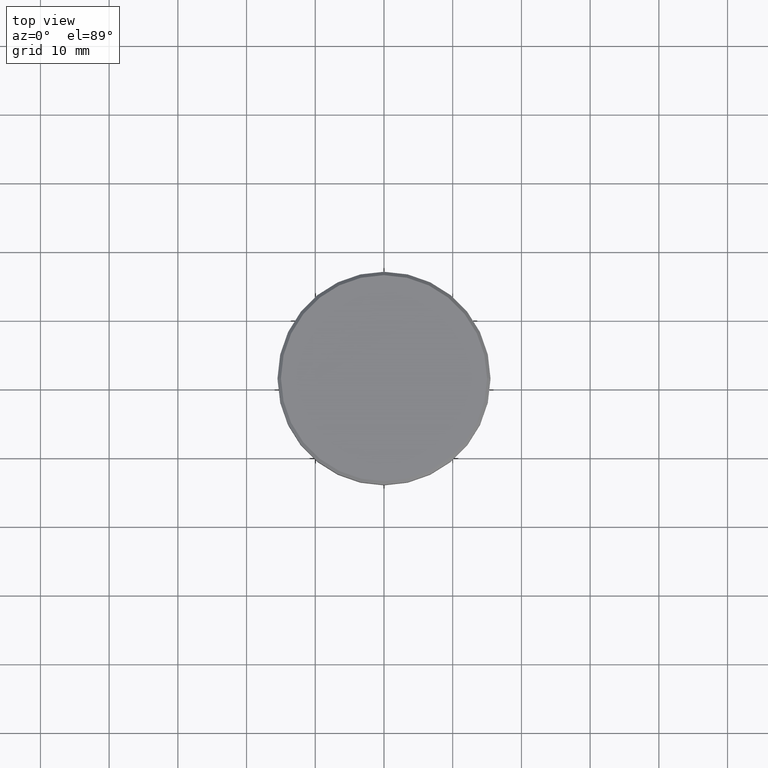
[diagram: clean part render]
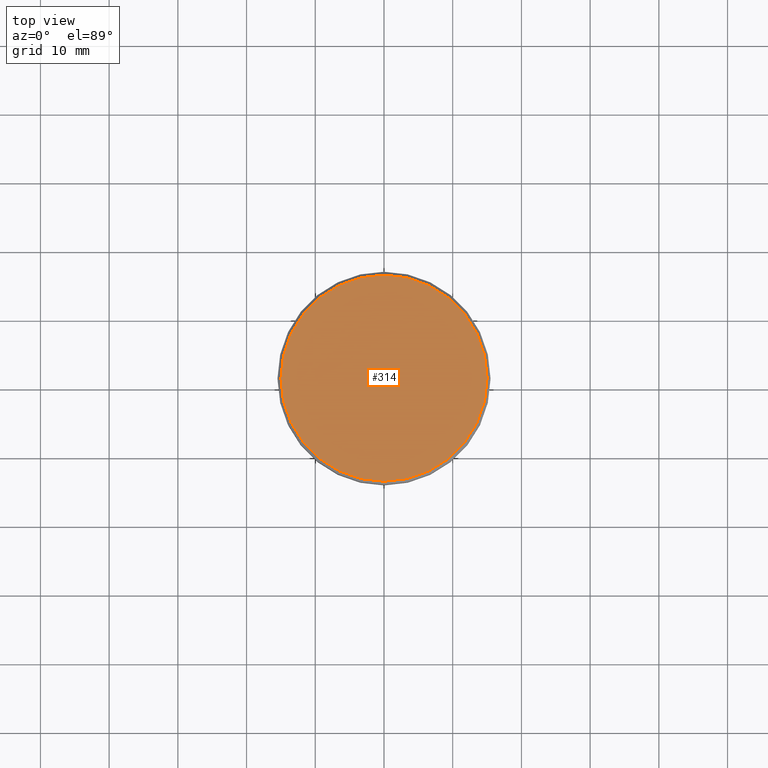
[diagram: same view with one face highlighted and labeled with its STEP entity id]
A machine part, top view. The second image highlights one B-rep face of the part: STEP entity #314.
In plain terms, the highlighted planar face has unit normal (0, -0, 1).
Its self-contained STEP definition (entity closure, byte-faithful):
#3 = CIRCLE ( 'NONE', #57, 15.00000000000001421 ) ;
#57 = AXIS2_PLACEMENT_3D ( 'NONE', #509, #794, #1153 ) ;
#60 = CIRCLE ( 'NONE', #700, 15.00000000000001421 ) ;
#107 = EDGE_CURVE ( 'NONE', #240, #479, #3, .T. ) ;
#145 = DIRECTION ( 'NONE',  ( -0.000000000000000000, -0.000000000000000000, 1.000000000000000000 ) ) ;
#161 = DIRECTION ( 'NONE',  ( 1.000000000000000000, 0.000000000000000000, 0.000000000000000000 ) ) ;
#235 = CARTESIAN_POINT ( 'NONE',  ( 0.000000000000000000, 0.000000000000000000, 0.000000000000000000 ) ) ;
#240 = VERTEX_POINT ( 'NONE', #1107 ) ;
#300 = CARTESIAN_POINT ( 'NONE',  ( 0.000000000000000000, 0.000000000000000000, 0.000000000000000000 ) ) ;
#314 = ADVANCED_FACE ( 'NONE', ( #492 ), #1111, .T. ) ;
#365 = AXIS2_PLACEMENT_3D ( 'NONE', #300, #486, #1016 ) ;
#410 = ORIENTED_EDGE ( 'NONE', *, *, #107, .T. ) ;
#479 = VERTEX_POINT ( 'NONE', #655 ) ;
#486 = DIRECTION ( 'NONE',  ( 0.000000000000000000, -0.000000000000000000, 1.000000000000000000 ) ) ;
#492 = FACE_OUTER_BOUND ( 'NONE', #1112, .T. ) ;
#509 = CARTESIAN_POINT ( 'NONE',  ( 0.000000000000000000, 0.000000000000000000, 0.000000000000000000 ) ) ;
#655 = CARTESIAN_POINT ( 'NONE',  ( 15.00000000000001421, 1.867586368699714559E-15, 0.000000000000000000 ) ) ;
#692 = EDGE_CURVE ( 'NONE', #479, #240, #60, .T. ) ;
#700 = AXIS2_PLACEMENT_3D ( 'NONE', #235, #145, #161 ) ;
#794 = DIRECTION ( 'NONE',  ( -0.000000000000000000, -0.000000000000000000, 1.000000000000000000 ) ) ;
#909 = ORIENTED_EDGE ( 'NONE', *, *, #692, .T. ) ;
#1016 = DIRECTION ( 'NONE',  ( 1.000000000000000000, 0.000000000000000000, 0.000000000000000000 ) ) ;
#1107 = CARTESIAN_POINT ( 'NONE',  ( -15.00000000000001421, 0.000000000000000000, 0.000000000000000000 ) ) ;
#1111 = PLANE ( 'NONE',  #365 ) ;
#1112 = EDGE_LOOP ( 'NONE', ( #410, #909 ) ) ;
#1153 = DIRECTION ( 'NONE',  ( 1.000000000000000000, 0.000000000000000000, 0.000000000000000000 ) ) ;